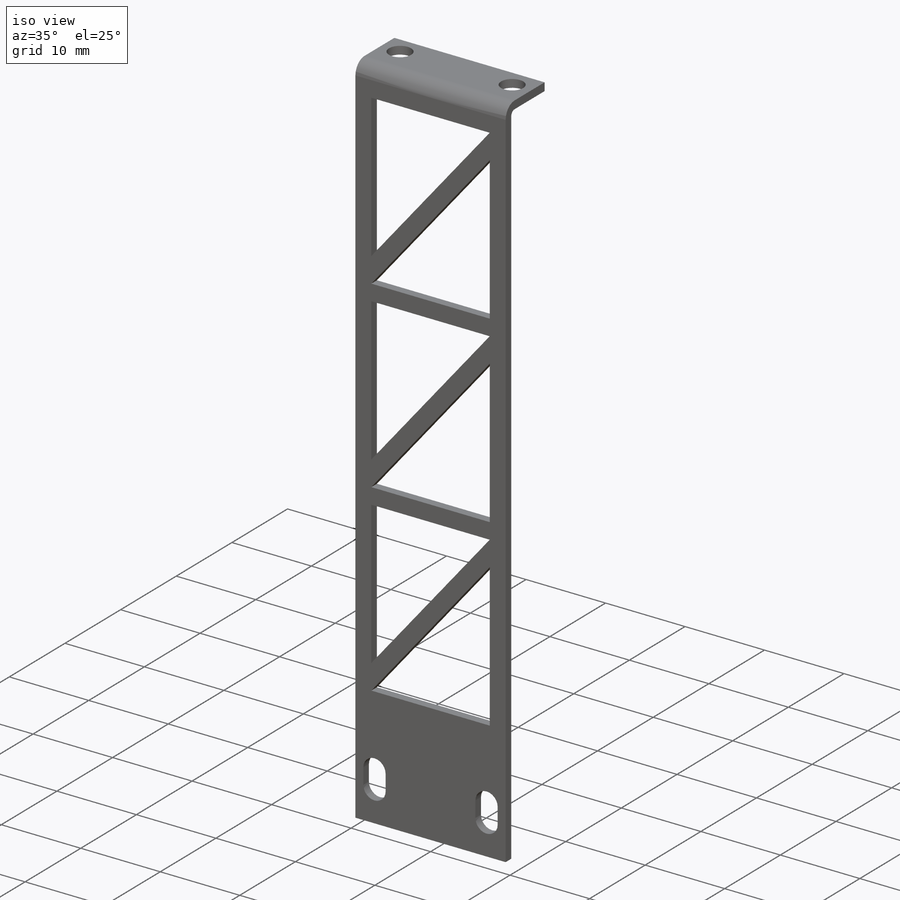
[diagram: iso view]
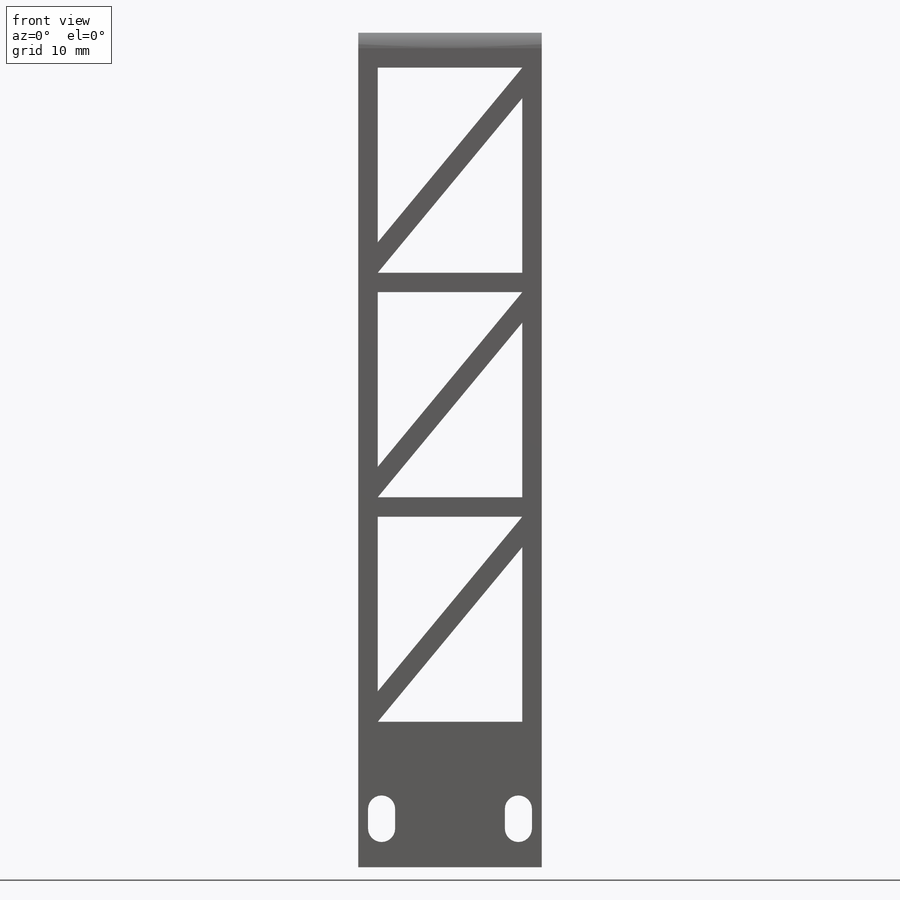
[diagram: front view]
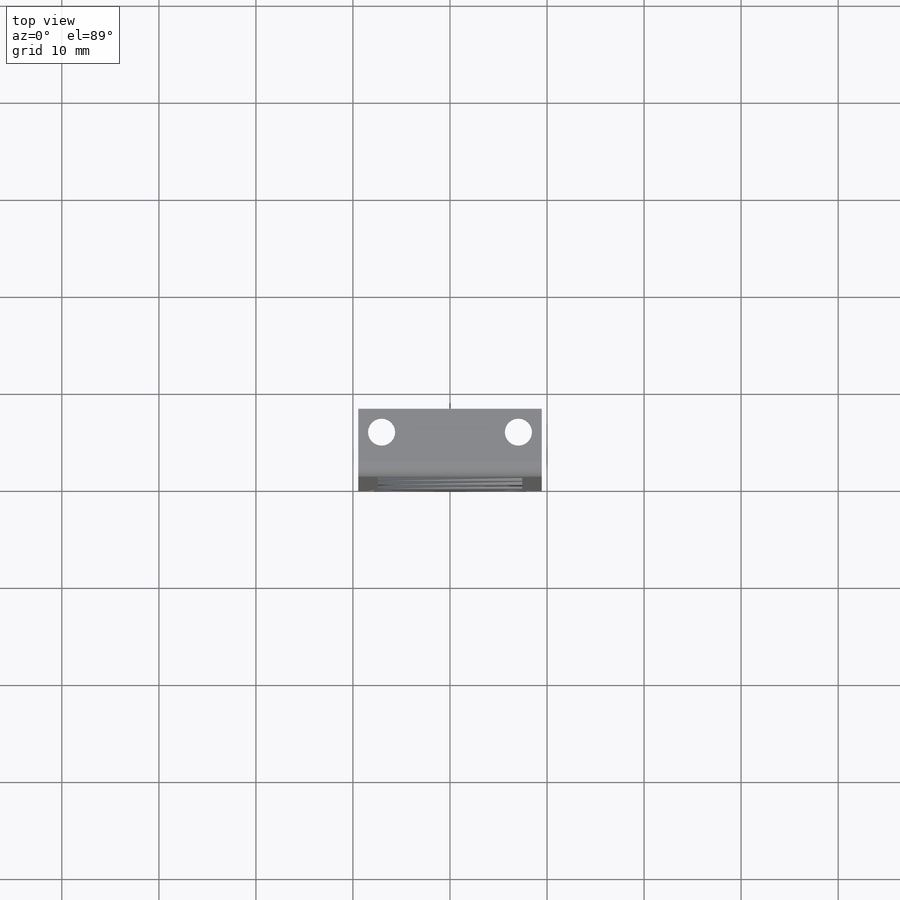
[diagram: top view]
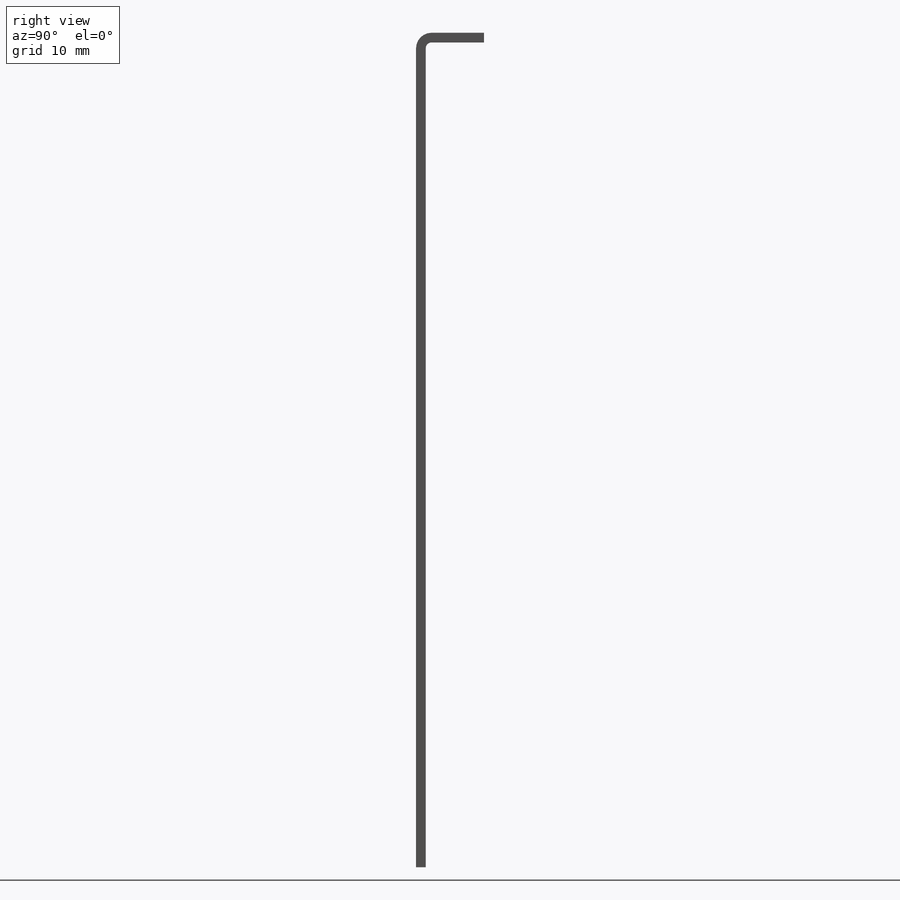
[diagram: right view]
SOLIDWORKS PART (.sldprt)
format: sldprt  version: not decoded by parser v0  size: 344,064 bytes
history: native  units: mm
features: sketch x14, sheet_metal_op x5, cut_extrude x2, fillet x2, material x1 + 6 further entries (+12 scaffold rows collapsed; 1 parser-record rows omitted)
feature tree (43):
  scaffold x12  (default folders/planes/origin — collapsed)
  material  "Material <not specified>"
  sketch  "Sketch1"  dims[c1.D1=85.0mm c1.D2=18.9mm c1.D3=2.8mm c1.D4=2.0mm c1.D5=2.8mm c1.D6=2.0mm c1.D7=5.0mm c1.D8=5.0mm c1.D9=2.4mm c1.D10=2.4mm c2.D1=0.6mm c2.D2=0.5 c2.D3=0.0mm c2.D6=500.0mm]
  sheet_metal_op  "Base-Flange1"
  sketch  "Sketch8"  dims[c1.D1=0.6mm c1.D4=90.0deg c1.D5=1.0 c1.D8=0.5mm c1.D9=0.5mm c2.D1=0.6mm c2.D2=500.0mm c2.D3=0.0mm c2.D6=10.0mm c2.D7=6.0mm]
  sketch  "Sketch9"  dims[D1=2.8mm D2=2.8mm D3=2.4mm D4=2.4mm D5=2.4mm D6=2.4mm]
  cut_extrude  "Cut-Extrude1"  Depth=10mm
  sketch  "Sketch12"  dims[D1=2.0mm D2=2.0mm D3=2.0mm D4=2.0mm D5=2.0mm D6=2.0mm D7=2.0mm D8=2.0mm D9=2.0mm D10=2.0mm D11=2.0mm D12=2.0mm D13=2.0mm D14=2.0mm D15=2.0mm D16=2.0mm D17=18.0mm D18=18.0mm D19=18.0mm D20=2.0mm]
  cut_extrude  "Cut-Extrude4"  Depth=10mm
  sketch  "Bend-Lines1"
  sketch  "Bounding-Box1"
  fillet  "Fillet1"  Radius=1mm
  fillet  "Fillet2"  Radius=2mm
  sheet_metal_op  "Sheet-Metal(1)"
  "Flat-Pattern(1)"
  sketch  "Bend-Lines2"
  sketch  "Bounding-Box2"
  parser-record x1  (decoder bookkeeping rows leaked as tree rows — omitted from the tree; the rows remain in map.json)
  sheet_metal_op  "Sheet-Metal(2)"
  "Flat-Pattern(1)"
  sketch  "Bend-Lines2"
  sketch  "Bounding-Box2"
  sheet_metal_op  "Sheet-Metal(3)"
  "Flat-Pattern(1)"
  sketch  "Bend-Lines2"
  sketch  "Bounding-Box2"
  "Flatten-<EdgeBend1>1"
  sheet_metal_op  "Sheet-Metal(6)"
  "Flat-Pattern(1)"
  sketch  "Bend-Lines2"
  sketch  "Bounding-Box2"
  "Flatten-<EdgeBend1>1"
decode coverage: 8 of 23 modeling features carry decoded parameters; 6 rows unclassified (native names shown)
note: suppression state not decoded; provenance and decode notes live in map.json
